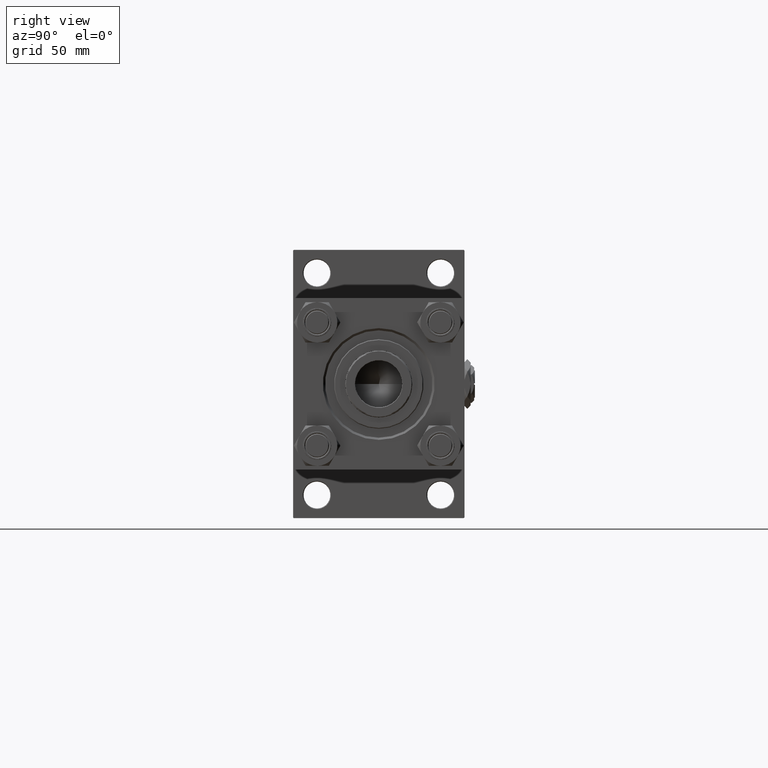
[diagram: clean part render]
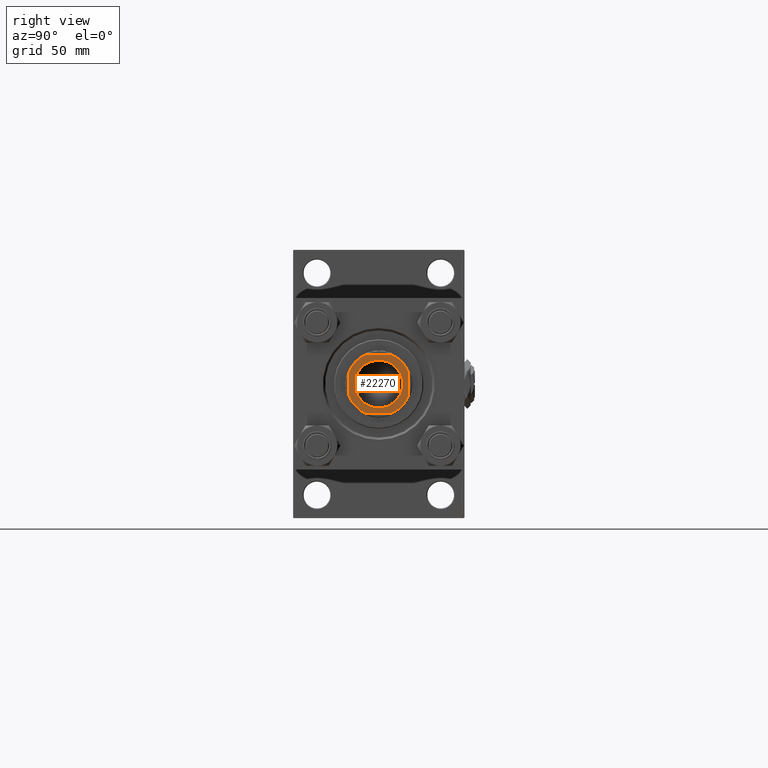
[diagram: same view with one face highlighted and labeled with its STEP entity id]
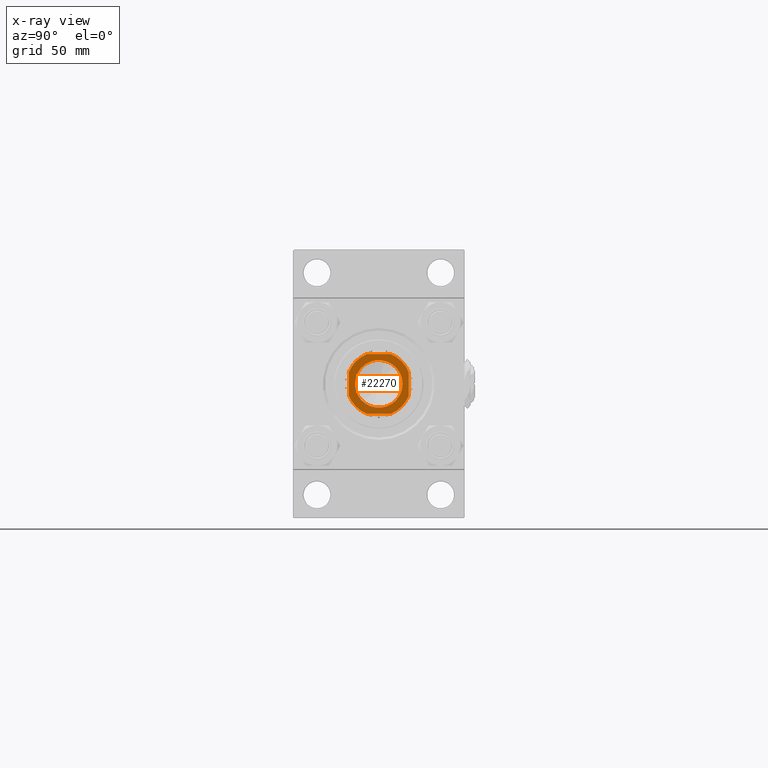
[diagram: x-ray of the same camera — body ghosted, the highlighted face saturated]
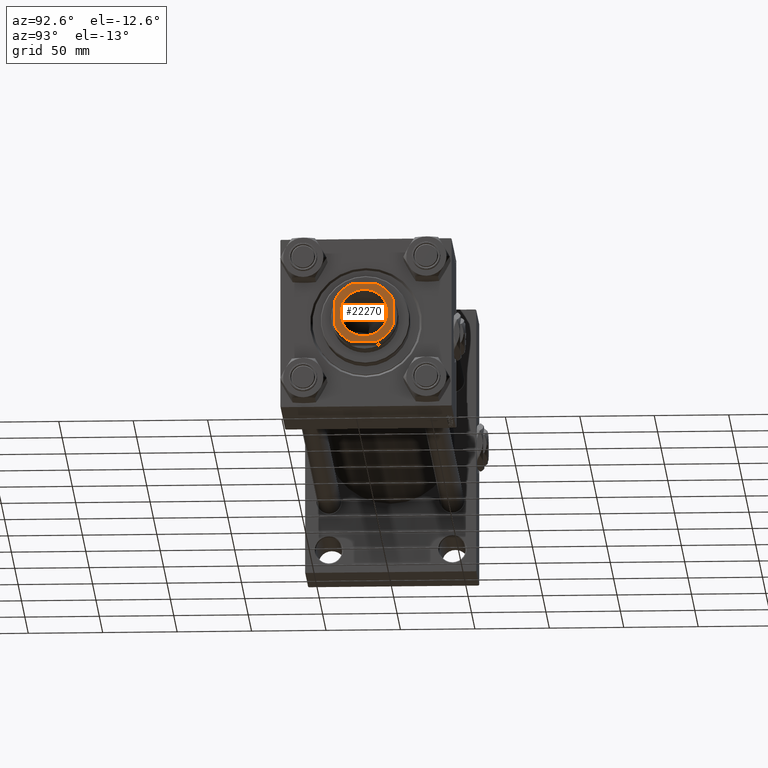
[diagram: same view with one face highlighted and labeled with its STEP entity id]
A machine part, right view. The second image highlights one B-rep face of the part: STEP entity #22270.
The next image is the same camera in x-ray: the body ghosted, the highlighted face saturated — about 0% of this face is hidden behind the body in this view.
A second angle (auxiliary view) of the same face is appended — the face is thin or edge-on in the first view.
In plain terms, the highlighted planar face has unit normal (1, 0, 0).
Its self-contained STEP definition (entity closure, byte-faithful):
#498 = ORIENTED_EDGE ( 'NONE', *, *, #18881, .T. ) ;
#937 = EDGE_CURVE ( 'NONE', #12149, #35607, #34180, .T. ) ;
#993 = ORIENTED_EDGE ( 'NONE', *, *, #21296, .T. ) ;
#1259 = VECTOR ( 'NONE', #13906, 1000.000000000000000 ) ;
#1545 = ORIENTED_EDGE ( 'NONE', *, *, #2787, .T. ) ;
#1725 = CARTESIAN_POINT ( 'NONE',  ( 0.000000000000000000, 0.000000000000000000, 396.0000000000000000 ) ) ;
#1790 = AXIS2_PLACEMENT_3D ( 'NONE', #28158, #51539, #11970 ) ;
#2162 = AXIS2_PLACEMENT_3D ( 'NONE', #1725, #17892, #34086 ) ;
#2787 = EDGE_CURVE ( 'NONE', #38143, #40267, #50165, .T. ) ;
#4124 = EDGE_CURVE ( 'NONE', #17268, #12149, #21881, .T. ) ;
#4354 = DIRECTION ( 'NONE',  ( -0.000000000000000000, 0.000000000000000000, 1.000000000000000000 ) ) ;
#6169 = AXIS2_PLACEMENT_3D ( 'NONE', #36647, #8492, #21223 ) ;
#8240 = LINE ( 'NONE', #21495, #21723 ) ;
#8492 = DIRECTION ( 'NONE',  ( -0.000000000000000000, 0.000000000000000000, 1.000000000000000000 ) ) ;
#9822 = CARTESIAN_POINT ( 'NONE',  ( -7.889866919029592474, 20.00000000000000000, 396.0000000000000000 ) ) ;
#10301 = DIRECTION ( 'NONE',  ( 1.734723475976807094E-16, -1.000000000000000000, 0.000000000000000000 ) ) ;
#10962 = AXIS2_PLACEMENT_3D ( 'NONE', #35135, #31941, #47633 ) ;
#11970 = DIRECTION ( 'NONE',  ( 1.000000000000000000, 0.000000000000000000, 0.000000000000000000 ) ) ;
#12149 = VERTEX_POINT ( 'NONE', #47768 ) ;
#12490 = ORIENTED_EDGE ( 'NONE', *, *, #38725, .T. ) ;
#13095 = CARTESIAN_POINT ( 'NONE',  ( 16.04999999999995453, 0.000000000000000000, 396.0000000000000000 ) ) ;
#13287 = CARTESIAN_POINT ( 'NONE',  ( 20.00000000000000000, -7.889866919029816295, 396.0000000000000000 ) ) ;
#13442 = LINE ( 'NONE', #34148, #36444 ) ;
#13906 = DIRECTION ( 'NONE',  ( -1.734723475976807094E-16, 1.000000000000000000, -0.000000000000000000 ) ) ;
#14055 = EDGE_LOOP ( 'NONE', ( #20948, #19040, #21684, #498, #1545, #49377, #12490, #993 ) ) ;
#14633 = ORIENTED_EDGE ( 'NONE', *, *, #23398, .T. ) ;
#16372 = VERTEX_POINT ( 'NONE', #9822 ) ;
#17268 = VERTEX_POINT ( 'NONE', #13287 ) ;
#17868 = CARTESIAN_POINT ( 'NONE',  ( -20.00000000000000000, -7.889866919029596026, 396.0000000000000000 ) ) ;
#17892 = DIRECTION ( 'NONE',  ( 0.000000000000000000, -0.000000000000000000, -1.000000000000000000 ) ) ;
#18122 = EDGE_LOOP ( 'NONE', ( #36633, #14633 ) ) ;
#18849 = VERTEX_POINT ( 'NONE', #48169 ) ;
#18881 = EDGE_CURVE ( 'NONE', #16372, #38143, #37249, .T. ) ;
#19040 = ORIENTED_EDGE ( 'NONE', *, *, #937, .T. ) ;
#19598 = AXIS2_PLACEMENT_3D ( 'NONE', #21508, #20725, #44905 ) ;
#20607 = AXIS2_PLACEMENT_3D ( 'NONE', #28147, #41423, #41160 ) ;
#20725 = DIRECTION ( 'NONE',  ( 0.000000000000000000, -0.000000000000000000, -1.000000000000000000 ) ) ;
#20948 = ORIENTED_EDGE ( 'NONE', *, *, #4124, .T. ) ;
#21223 = DIRECTION ( 'NONE',  ( 1.000000000000000000, 0.000000000000000000, 0.000000000000000000 ) ) ;
#21266 = CARTESIAN_POINT ( 'NONE',  ( -7.889866919029592474, -20.00000000000000000, 396.0000000000000000 ) ) ;
#21296 = EDGE_CURVE ( 'NONE', #33187, #17268, #36495, .T. ) ;
#21495 = CARTESIAN_POINT ( 'NONE',  ( -19.99999999999999645, -20.00000000000000000, 396.0000000000000000 ) ) ;
#21508 = CARTESIAN_POINT ( 'NONE',  ( 0.000000000000000000, 0.000000000000000000, 396.0000000000000000 ) ) ;
#21670 = DIRECTION ( 'NONE',  ( -1.000000000000000000, -0.000000000000000000, -0.000000000000000000 ) ) ;
#21684 = ORIENTED_EDGE ( 'NONE', *, *, #46192, .T. ) ;
#21723 = VECTOR ( 'NONE', #40910, 1000.000000000000000 ) ;
#21881 = LINE ( 'NONE', #50571, #1259 ) ;
#22005 = CARTESIAN_POINT ( 'NONE',  ( -20.00000000000000355, 20.00000000000000000, 396.0000000000000000 ) ) ;
#22270 = ADVANCED_FACE ( 'NONE', ( #43577, #48367 ), #47825, .T. ) ;
#23398 = EDGE_CURVE ( 'NONE', #18849, #35264, #31452, .T. ) ;
#24524 = CARTESIAN_POINT ( 'NONE',  ( 0.000000000000000000, 0.000000000000000000, 396.0000000000000000 ) ) ;
#26035 = EDGE_CURVE ( 'NONE', #40267, #46996, #38380, .T. ) ;
#28147 = CARTESIAN_POINT ( 'NONE',  ( 0.000000000000000000, 0.000000000000000000, 396.0000000000000000 ) ) ;
#28158 = CARTESIAN_POINT ( 'NONE',  ( 0.000000000000000000, 0.000000000000000000, 396.0000000000000000 ) ) ;
#31452 = CIRCLE ( 'NONE', #19598, 16.04999999999995453 ) ;
#31941 = DIRECTION ( 'NONE',  ( -0.000000000000000000, 0.000000000000000000, 1.000000000000000000 ) ) ;
#32740 = CARTESIAN_POINT ( 'NONE',  ( 7.889866919029819847, -20.00000000000000000, 396.0000000000000000 ) ) ;
#32907 = EDGE_CURVE ( 'NONE', #35264, #18849, #45385, .T. ) ;
#33187 = VERTEX_POINT ( 'NONE', #32740 ) ;
#34086 = DIRECTION ( 'NONE',  ( 1.000000000000000000, 0.000000000000000000, 0.000000000000000000 ) ) ;
#34148 = CARTESIAN_POINT ( 'NONE',  ( -20.00000000000000355, 20.00000000000000000, 396.0000000000000000 ) ) ;
#34180 = CIRCLE ( 'NONE', #20607, 21.49999999999994316 ) ;
#35135 = CARTESIAN_POINT ( 'NONE',  ( 0.000000000000000000, 0.000000000000000000, 396.0000000000000000 ) ) ;
#35264 = VERTEX_POINT ( 'NONE', #13095 ) ;
#35607 = VERTEX_POINT ( 'NONE', #40863 ) ;
#36444 = VECTOR ( 'NONE', #21670, 1000.000000000000000 ) ;
#36495 = CIRCLE ( 'NONE', #50075, 21.50000000000002487 ) ;
#36633 = ORIENTED_EDGE ( 'NONE', *, *, #32907, .T. ) ;
#36647 = CARTESIAN_POINT ( 'NONE',  ( 0.000000000000000000, 0.000000000000000000, 396.0000000000000000 ) ) ;
#37249 = CIRCLE ( 'NONE', #10962, 21.49999999999994316 ) ;
#38143 = VERTEX_POINT ( 'NONE', #50121 ) ;
#38380 = CIRCLE ( 'NONE', #6169, 21.49999999999994316 ) ;
#38725 = EDGE_CURVE ( 'NONE', #46996, #33187, #8240, .T. ) ;
#39338 = VECTOR ( 'NONE', #10301, 1000.000000000000000 ) ;
#40267 = VERTEX_POINT ( 'NONE', #17868 ) ;
#40863 = CARTESIAN_POINT ( 'NONE',  ( 7.889866919029590697, 20.00000000000000000, 396.0000000000000000 ) ) ;
#40910 = DIRECTION ( 'NONE',  ( 1.000000000000000000, 0.000000000000000000, 0.000000000000000000 ) ) ;
#41160 = DIRECTION ( 'NONE',  ( 1.000000000000000000, 0.000000000000000000, 0.000000000000000000 ) ) ;
#41423 = DIRECTION ( 'NONE',  ( -0.000000000000000000, 0.000000000000000000, 1.000000000000000000 ) ) ;
#43577 = FACE_BOUND ( 'NONE', #18122, .T. ) ;
#44905 = DIRECTION ( 'NONE',  ( 1.000000000000000000, 0.000000000000000000, 0.000000000000000000 ) ) ;
#45385 = CIRCLE ( 'NONE', #2162, 16.04999999999995453 ) ;
#46192 = EDGE_CURVE ( 'NONE', #35607, #16372, #13442, .T. ) ;
#46996 = VERTEX_POINT ( 'NONE', #21266 ) ;
#47633 = DIRECTION ( 'NONE',  ( 1.000000000000000000, 0.000000000000000000, 0.000000000000000000 ) ) ;
#47768 = CARTESIAN_POINT ( 'NONE',  ( 20.00000000000000000, 7.889866919029596026, 396.0000000000000000 ) ) ;
#47825 = PLANE ( 'NONE',  #1790 ) ;
#48169 = CARTESIAN_POINT ( 'NONE',  ( -16.04999999999995453, 1.965558112631495894E-15, 396.0000000000000000 ) ) ;
#48367 = FACE_OUTER_BOUND ( 'NONE', #14055, .T. ) ;
#49377 = ORIENTED_EDGE ( 'NONE', *, *, #26035, .T. ) ;
#50075 = AXIS2_PLACEMENT_3D ( 'NONE', #24524, #4354, #52414 ) ;
#50121 = CARTESIAN_POINT ( 'NONE',  ( -20.00000000000000000, 7.889866919029588921, 396.0000000000000000 ) ) ;
#50165 = LINE ( 'NONE', #22005, #39338 ) ;
#50571 = CARTESIAN_POINT ( 'NONE',  ( 19.99999999999999645, 20.00000000000000000, 396.0000000000000000 ) ) ;
#51539 = DIRECTION ( 'NONE',  ( -0.000000000000000000, 0.000000000000000000, 1.000000000000000000 ) ) ;
#52414 = DIRECTION ( 'NONE',  ( 1.000000000000000000, 0.000000000000000000, 0.000000000000000000 ) ) ;